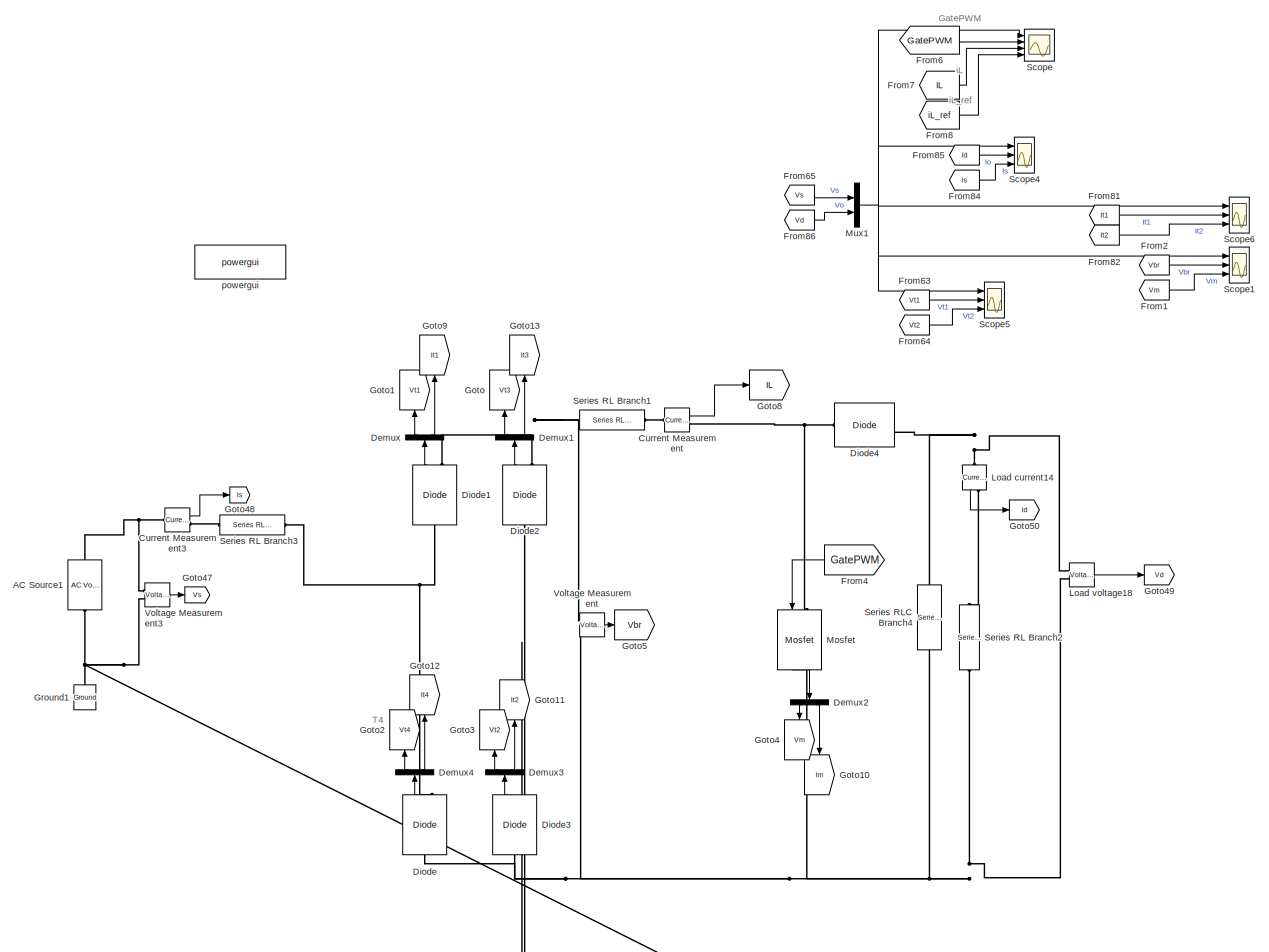
[diagram: root canvas - part 1/2, left side, full height]
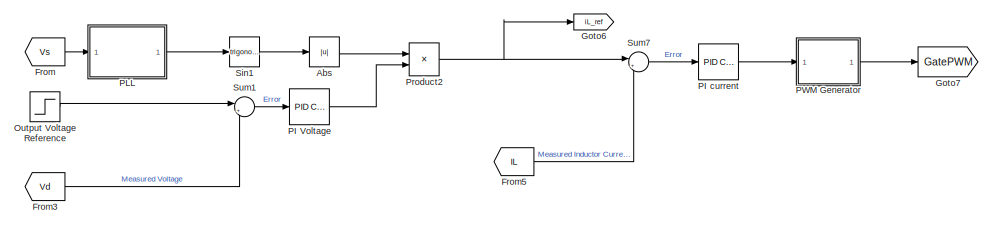
[diagram: root canvas - part 2/2, middle right region]
MODEL slx_e6503b37c94a
KIND model
CONFIG AbsTol = auto
CONFIG EnableMultiTasking = off
CONFIG FixedStep = auto
CONFIG MaxStep = auto
CONFIG MinStep = auto
CONFIG RelTol = 1e-3
CONFIG SampleTimeConstraint = Unconstrained
CONFIG SolverName = VariableStepAuto
CONFIG StartTime = 0.0
CONFIG StopTime = 10.0
BLOCK [Reference] AC Source1  REF=spsACVoltageSourceLib/AC Voltage Source
  NameLocation = left
  Ports = [0, 0, 0, 0, 0, 1, 1]
  SourceBlock = spsACVoltageSourceLib/AC Voltage Source
  SourceProductBaseCode = PS
  SourceType = AC Voltage Source
BLOCK [Abs] Abs
  SaturateOnIntegerOverflow = off
BLOCK [Reference] Current Measurement  REF=spsCurrentMeasurementLib/Current Measurement
  Ports = [0, 1, 0, 0, 0, 1, 1]
  SourceBlock = spsCurrentMeasurementLib/Current Measurement
  SourceProductBaseCode = PS
  SourceType = Current Measurement
  UserDataPersistent = on
BLOCK [Reference] Current Measurement3  REF=spsCurrentMeasurementLib/Current Measurement
  Ports = [0, 1, 0, 0, 0, 1, 1]
  SourceBlock = spsCurrentMeasurementLib/Current Measurement
  SourceProductBaseCode = PS
  SourceType = Current Measurement
  UserDataPersistent = on
BLOCK [Demux] Demux
  NameLocation = right
  Outputs = 2
  Ports = [1, 2]
BLOCK [Demux] Demux1
  NameLocation = right
  Outputs = 2
  Ports = [1, 2]
BLOCK [Demux] Demux2
  NameLocation = left
  Outputs = 2
  Ports = [1, 2]
BLOCK [Demux] Demux3
  NameLocation = right
  Outputs = 2
  Ports = [1, 2]
BLOCK [Demux] Demux4
  NameLocation = right
  Outputs = 2
  Ports = [1, 2]
BLOCK [Reference] Diode  REF=spsDiodeLib/Diode
  NameLocation = right
  Ports = [0, 1, 0, 0, 0, 1, 1]
  SourceBlock = spsDiodeLib/Diode
  SourceProductBaseCode = PS
  SourceType = Diode
BLOCK [Reference] Diode1  REF=spsDiodeLib/Diode
  NameLocation = right
  Ports = [0, 1, 0, 0, 0, 1, 1]
  SourceBlock = spsDiodeLib/Diode
  SourceProductBaseCode = PS
  SourceType = Diode
BLOCK [Reference] Diode2  REF=spsDiodeLib/Diode
  NameLocation = right
  Ports = [0, 1, 0, 0, 0, 1, 1]
  SourceBlock = spsDiodeLib/Diode
  SourceProductBaseCode = PS
  SourceType = Diode
BLOCK [Reference] Diode3  REF=spsDiodeLib/Diode
  NameLocation = right
  Ports = [0, 1, 0, 0, 0, 1, 1]
  SourceBlock = spsDiodeLib/Diode
  SourceProductBaseCode = PS
  SourceType = Diode
BLOCK [Reference] Diode4  REF=spsDiodeLib/Diode
  Ports = [0, 1, 0, 0, 0, 1, 1]
  SourceBlock = spsDiodeLib/Diode
  SourceProductBaseCode = PS
  SourceType = Diode
BLOCK [From] From
  GotoTag = Vs
  TagVisibility = global
BLOCK [From] From1
  GotoTag = Vm
BLOCK [From] From2
  GotoTag = Vbr
BLOCK [From] From3
  GotoTag = Vd
  TagVisibility = global
BLOCK [From] From4
  GotoTag = GatePWM
  NameLocation = top
BLOCK [From] From5
  GotoTag = IL
BLOCK [From] From6
  GotoTag = GatePWM
BLOCK [From] From63
  GotoTag = Vt1
BLOCK [From] From64
  GotoTag = Vt2
BLOCK [From] From65
  GotoTag = Vs
  TagVisibility = global
BLOCK [From] From7
  GotoTag = IL
BLOCK [From] From8
  GotoTag = iL_ref
  TagVisibility = global
BLOCK [From] From81
  GotoTag = It1
BLOCK [From] From82
  GotoTag = It2
BLOCK [From] From84
  GotoTag = Is
  TagVisibility = global
BLOCK [From] From85
  GotoTag = Id
  TagVisibility = global
BLOCK [From] From86
  GotoTag = Vd
  TagVisibility = global
BLOCK [Goto] Goto
  GotoTag = Vt3
  NameLocation = right
BLOCK [Goto] Goto1
  GotoTag = Vt1
  NameLocation = right
BLOCK [Goto] Goto10
  GotoTag = Im
  NameLocation = left
BLOCK [Goto] Goto11
  GotoTag = It2
  NameLocation = right
BLOCK [Goto] Goto12
  GotoTag = It4
  NameLocation = right
BLOCK [Goto] Goto13
  GotoTag = It3
  NameLocation = right
BLOCK [Goto] Goto2
  GotoTag = Vt4
  NameLocation = right
BLOCK [Goto] Goto3
  GotoTag = Vt2
  NameLocation = right
BLOCK [Goto] Goto4
  GotoTag = Vm
  NameLocation = left
BLOCK [Goto] Goto47
  GotoTag = Vs
  TagVisibility = global
BLOCK [Goto] Goto48
  GotoTag = Is
  TagVisibility = global
BLOCK [Goto] Goto49
  GotoTag = Vd
  TagVisibility = global
BLOCK [Goto] Goto5
  GotoTag = Vbr
BLOCK [Goto] Goto50
  GotoTag = Id
  TagVisibility = global
BLOCK [Goto] Goto6
  GotoTag = iL_ref
  TagVisibility = global
BLOCK [Goto] Goto7
  GotoTag = GatePWM
BLOCK [Goto] Goto8
  GotoTag = IL
BLOCK [Goto] Goto9
  GotoTag = It1
  NameLocation = right
BLOCK [Reference] Ground1  REF=spsGroundLib/Ground
  NameLocation = right
  Ports = [0, 0, 0, 0, 0, 1]
  SourceBlock = spsGroundLib/Ground
  SourceProductBaseCode = PS
  SourceType = Ground
BLOCK [Reference] Load current14  REF=spsCurrentMeasurementLib/Current Measurement
  NameLocation = left
  Ports = [0, 1, 0, 0, 0, 1, 1]
  SourceBlock = spsCurrentMeasurementLib/Current Measurement
  SourceProductBaseCode = PS
  SourceType = Current Measurement
  UserDataPersistent = on
BLOCK [Reference] Load voltage18  REF=spsVoltageMeasurementLib/Voltage Measurement
  Ports = [0, 1, 0, 0, 0, 2]
  SourceBlock = spsVoltageMeasurementLib/Voltage Measurement
  SourceProductBaseCode = PS
  SourceType = Voltage Measurement
  UserDataPersistent = on
BLOCK [Reference] Mosfet  REF=spsMosfetLib/Mosfet
  NameLocation = left
  Ports = [1, 1, 0, 0, 0, 1, 1]
  SourceBlock = spsMosfetLib/Mosfet
  SourceProductBaseCode = PS
  SourceType = Mosfet
BLOCK [Mux] Mux1
  DisplayOption = bar
  Inputs = 2
  Ports = [2, 1]
BLOCK [Step] Output Voltage Reference
  After = 526.5
  Before = 405
  SampleTime = 2e-7
  Time = 0.1
BLOCK [Reference] PI Voltage  REF=slpidlib/PID Controller
  Ports = [1, 1]
  SourceBlock = slpidlib/PID Controller
  SourceProductBaseCode = SL
  SourceType = PID 1dof
BLOCK [Reference] PI current  REF=slpidlib/PID Controller
  Ports = [1, 1]
  SourceBlock = slpidlib/PID Controller
  SourceProductBaseCode = SL
  SourceType = PID 1dof
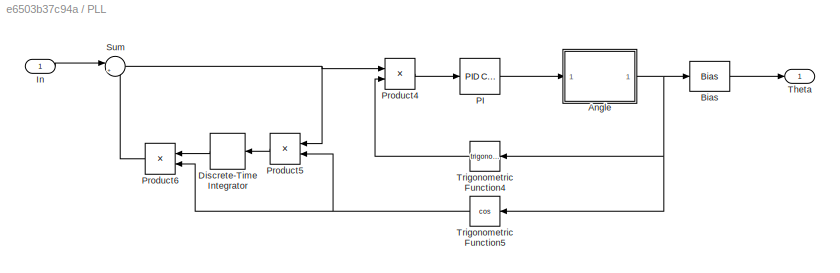
BLOCK [SubSystem] PLL
  Ports = [1, 1]
  RequestExecContextInheritance = off
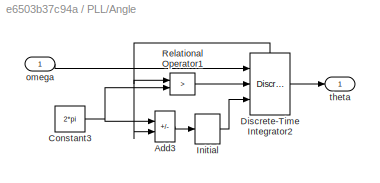
BLOCK [SubSystem] PLL/Angle
  Ports = [1, 1]
  RequestExecContextInheritance = off
BLOCK [Sum] PLL/Angle/Add3
  IconShape = rectangular
  Inputs = -+
  NameLocation = top
  Ports = [2, 1]
BLOCK [Constant] PLL/Angle/Constant3
  Value = 2*pi
BLOCK [DiscreteIntegrator] PLL/Angle/Discrete-Time Integrator2
  ExternalReset = rising
  ICPrevOutput = DiscIntNeverNeededParam
  ICPrevScaledInput = DiscIntNeverNeededParam
  InitialConditionSetting = Auto
  InitialConditionSource = external
  Ports = [3, 1, 0, 0, 1]
  SampleTime = -1
  ShowStatePort = on
BLOCK [InitialCondition] PLL/Angle/Initial
  Value = 0
BLOCK [RelationalOperator] PLL/Angle/Relational Operator1
  InputSameDT = off
  Operator = >
  OutDataTypeStr = boolean
  Ports = [2, 1]
BLOCK [Inport] PLL/Angle/omega
BLOCK [Outport] PLL/Angle/theta
  VectorParamsAs1DForOutWhenUnconnected = off
BLOCK [Bias] PLL/Bias
  Bias = -pi/2
  SaturateOnIntegerOverflow = off
BLOCK [DiscreteIntegrator] PLL/Discrete-Time Integrator
  ICPrevOutput = DiscIntNeverNeededParam
  ICPrevScaledInput = DiscIntNeverNeededParam
  InitialConditionSetting = Auto
  Ports = [1, 1]
  SampleTime = -1
  gainval = 100*2
BLOCK [Inport] PLL/In
BLOCK [Reference] PLL/PI  REF=slpidlib/PID Controller
  Ports = [1, 1]
  SourceBlock = slpidlib/PID Controller
  SourceProductBaseCode = SL
  SourceType = PID 1dof
BLOCK [Product] PLL/Product4
  Ports = [2, 1]
BLOCK [Product] PLL/Product5
  NameLocation = top
  Ports = [2, 1]
BLOCK [Product] PLL/Product6
  NameLocation = top
  Ports = [2, 1]
BLOCK [Sum] PLL/Sum
  Inputs = |+-
  Ports = [2, 1]
BLOCK [Outport] PLL/Theta
  VectorParamsAs1DForOutWhenUnconnected = off
BLOCK [Trigonometry] PLL/Trigonometric Function4
  NameLocation = top
  Ports = [1, 1]
BLOCK [Trigonometry] PLL/Trigonometric Function5
  NameLocation = top
  Operator = cos
  Ports = [1, 1]
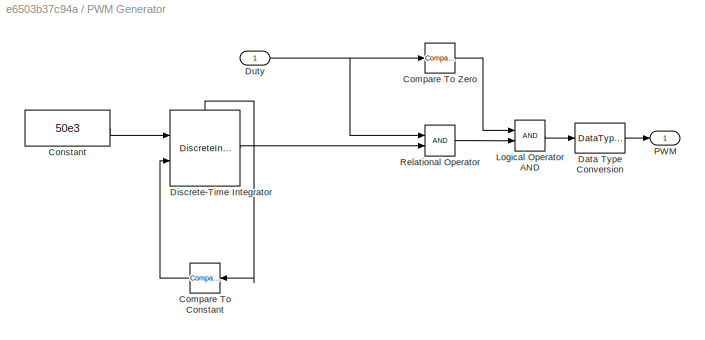
BLOCK [SubSystem] PWM Generator
  Ports = [1, 1]
  RequestExecContextInheritance = off
BLOCK [Reference] PWM Generator/Compare To Constant  REF=simulink/Logic and Bit
Operations/Compare
To Constant
  NameLocation = top
  Ports = [1, 1]
  SourceBlock = simulink/Logic and Bit\nOperations/Compare\nTo Constant
  SourceProductBaseCode = SL
  SourceType = Compare To Constant
BLOCK [Reference] PWM Generator/Compare To Zero  REF=simulink/Logic and Bit
Operations/Compare
To Zero
  Ports = [1, 1]
  SourceBlock = simulink/Logic and Bit\nOperations/Compare\nTo Zero
  SourceProductBaseCode = SL
  SourceType = Compare To Zero
BLOCK [Constant] PWM Generator/Constant
  SampleTime = 2e-7
  Value = 50e3
BLOCK [DataTypeConversion] PWM Generator/Data Type Conversion
  OutDataTypeStr = double
  RndMeth = Floor
  SaturateOnIntegerOverflow = off
BLOCK [DiscreteIntegrator] PWM Generator/Discrete-Time Integrator
  ExternalReset = rising
  ICPrevOutput = DiscIntNeverNeededParam
  ICPrevScaledInput = DiscIntNeverNeededParam
  InitialConditionSetting = Auto
  Ports = [2, 1, 0, 0, 1]
  SampleTime = -1
  ShowStatePort = on
BLOCK [Inport] PWM Generator/Duty
BLOCK [Logic] PWM Generator/Logical Operator AND
  AllPortsSameDT = off
  OutDataTypeStr = boolean
  Ports = [2, 1]
BLOCK [Outport] PWM Generator/PWM
  NameLocation = top
  VectorParamsAs1DForOutWhenUnconnected = off
BLOCK [RelationalOperator] PWM Generator/Relational Operator
  InputSameDT = off
  OutDataTypeStr = boolean
  Ports = [2, 1]
BLOCK [Product] Product2
  Ports = [2, 1]
BLOCK [Scope] Scope
  Floating = off
  NumInputPorts = 4
  Ports = [4]
  ScopeSpecificationString = Simulink.scopes.TimeScopeBlockCfg('CurrentConfiguration', extmgr.ConfigurationSet(extmgr.Configuration('Core','General UI',true),extmgr.Configuration('Core','Source UI',true),extmgr.Configuration('Sources','WiredSimulink',true,'DataLoggingVariableName','ScopeData2'),extmgr.Configuration('Visuals','Time Domain',true,'SerializedDisplays',{struct('MinYLimReal','-608.90249','MaxYLimReal','967.58976','...<+3420ch>
BLOCK [Scope] Scope1
  Floating = off
  NumInputPorts = 3
  Ports = [3]
  ScopeSpecificationString = Simulink.scopes.TimeScopeBlockCfg('CurrentConfiguration', extmgr.ConfigurationSet(extmgr.Configuration('Core','General UI',true,'FigureColor',[0 0 0]),extmgr.Configuration('Core','Source UI',true),extmgr.Configuration('Sources','WiredSimulink',true,'DataLoggingSaveFormat','StructureWithTime','DataLoggingDecimation','1','DataLoggingVariableName','ScopeData1'),extmgr.Configuration('Visuals','Time Do...<+3241ch>
BLOCK [Scope] Scope4
  Floating = off
  NumInputPorts = 3
  Ports = [3]
  ScopeSpecificationString = Simulink.scopes.TimeScopeBlockCfg('CurrentConfiguration', extmgr.ConfigurationSet(extmgr.Configuration('Core','General UI',true,'FigureColor',[0 0 0]),extmgr.Configuration('Core','Source UI',true),extmgr.Configuration('Sources','WiredSimulink',true,'DataLoggingSaveFormat','StructureWithTime','DataLoggingDecimation','1','DataLoggingVariableName','ScopeData1','DataLogging',true),extmgr.Configuration...<+3276ch>
BLOCK [Scope] Scope5
  Floating = off
  NumInputPorts = 3
  Ports = [3]
  ScopeSpecificationString = Simulink.scopes.TimeScopeBlockCfg('CurrentConfiguration', extmgr.ConfigurationSet(extmgr.Configuration('Core','General UI',true,'FigureColor',[0 0 0]),extmgr.Configuration('Core','Source UI',true),extmgr.Configuration('Sources','WiredSimulink',true,'DataLoggingSaveFormat','StructureWithTime','DataLoggingDecimation','1','DataLoggingVariableName','ScopeData2'),extmgr.Configuration('Visuals','Time Do...<+3248ch>
BLOCK [Scope] Scope6
  Floating = off
  NumInputPorts = 3
  Ports = [3]
  ScopeSpecificationString = Simulink.scopes.TimeScopeBlockCfg('CurrentConfiguration', extmgr.ConfigurationSet(extmgr.Configuration('Core','General UI',true,'FigureColor',[0 0 0]),extmgr.Configuration('Core','Source UI',true),extmgr.Configuration('Sources','WiredSimulink',true,'DataLoggingSaveFormat','StructureWithTime','DataLoggingDecimation','1'),extmgr.Configuration('Visuals','Time Domain',true,'PlotType','Line','Serialize...<+3197ch>
BLOCK [Reference] Series RL Branch1  REF=spsSeriesRLCBranchLib/Series RLC Branch
  Ports = [0, 0, 0, 0, 0, 1, 1]
  SourceBlock = spsSeriesRLCBranchLib/Series RLC Branch
  SourceProductBaseCode = PS
  SourceType = Series RLC Branch
BLOCK [Reference] Series RL Branch2  REF=spsSeriesRLCBranchLib/Series RLC Branch
  NameLocation = left
  Ports = [0, 0, 0, 0, 0, 1, 1]
  SourceBlock = spsSeriesRLCBranchLib/Series RLC Branch
  SourceProductBaseCode = PS
  SourceType = Series RLC Branch
BLOCK [Reference] Series RL Branch3  REF=spsSeriesRLCBranchLib/Series RLC Branch
  Ports = [0, 0, 0, 0, 0, 1, 1]
  SourceBlock = spsSeriesRLCBranchLib/Series RLC Branch
  SourceProductBaseCode = PS
  SourceType = Series RLC Branch
BLOCK [Reference] Series RLC Branch4  REF=spsSeriesRLCBranchLib/Series RLC Branch
  NameLocation = left
  Ports = [0, 0, 0, 0, 0, 1, 1]
  SourceBlock = spsSeriesRLCBranchLib/Series RLC Branch
  SourceProductBaseCode = PS
  SourceType = Series RLC Branch
BLOCK [Trigonometry] Sin1
  Ports = [1, 1]
BLOCK [Sum] Sum1
  Inputs = |+-
  Ports = [2, 1]
BLOCK [Sum] Sum7
  Inputs = |+-
  Ports = [2, 1]
BLOCK [Reference] Voltage Measurement  REF=spsVoltageMeasurementLib/Voltage Measurement
  Ports = [0, 1, 0, 0, 0, 2]
  SourceBlock = spsVoltageMeasurementLib/Voltage Measurement
  SourceProductBaseCode = PS
  SourceType = Voltage Measurement
  UserDataPersistent = on
BLOCK [Reference] Voltage Measurement3  REF=spsVoltageMeasurementLib/Voltage Measurement
  Ports = [0, 1, 0, 0, 0, 2]
  SourceBlock = spsVoltageMeasurementLib/Voltage Measurement
  SourceProductBaseCode = PS
  SourceType = Voltage Measurement
  UserDataPersistent = on
BLOCK [Reference] powergui  REF=spspowerguiLib/powergui
  Ports = []
  Priority = 1
  SourceBlock = spspowerguiLib/powergui
  SourceProductBaseCode = PS
  SourceType = PSB option menu block
ANNOTATION (root): T4
ANNOTATION (root): GatePWM
ANNOTATION (root): iL
ANNOTATION (root): iL_ref
LINE Abs:1 -> Product2:1
LINE Current Measurement3:1 -> Goto48:1
LINE Current Measurement:1 -> Goto8:1
LINE Demux1:1 -> Goto:1
LINE Demux1:2 -> Goto13:1
LINE Demux2:1 -> Goto4:1
LINE Demux2:2 -> Goto10:1
LINE Demux3:1 -> Goto3:1
LINE Demux3:2 -> Goto11:1
LINE Demux4:1 -> Goto2:1
LINE Demux4:2 -> Goto12:1
LINE Demux:1 -> Goto1:1
LINE Demux:2 -> Goto9:1
LINE Diode1:1 -> Demux:1
LINE Diode2:1 -> Demux1:1
LINE Diode3:1 -> Demux3:1
LINE Diode:1 -> Demux4:1
LINE From1:1 -> Scope1:3
LINE From2:1 -> Scope1:2
LINE From3:1 -> Sum1:2
LINE From4:1 -> Mosfet:1
LINE From5:1 -> Sum7:2
LINE From63:1 -> Scope5:2
LINE From64:1 -> Scope5:3
LINE From65:1 -> Mux1:1
LINE From6:1 -> Scope:2
LINE From7:1 -> Scope:3
LINE From81:1 -> Scope6:2
LINE From82:1 -> Scope6:3
LINE From84:1 -> Scope4:3
LINE From85:1 -> Scope4:2
LINE From86:1 -> Mux1:2
LINE From8:1 -> Scope:4
LINE From:1 -> PLL:1
LINE Load current14:1 -> Goto50:1
LINE Load voltage18:1 -> Goto49:1
LINE Mosfet:1 -> Demux2:1
NET Mux1:1 -> Scope1:1, Scope4:1, Scope5:1, Scope6:1, Scope:1
LINE Output Voltage Reference:1 -> Sum1:1
LINE PI Voltage:1 -> Product2:2
LINE PI current:1 -> PWM Generator:1
LINE PLL/Angle/Add3:1 -> PLL/Angle/Initial:1
NET PLL/Angle/Constant3:1 -> PLL/Angle/Add3:1, PLL/Angle/Relational Operator1:2
LINE PLL/Angle/Discrete-Time Integrator2:1 -> PLL/Angle/theta:1
NET PLL/Angle/Discrete-Time Integrator2:state -> PLL/Angle/Add3:2, PLL/Angle/Relational Operator1:1
LINE PLL/Angle/Initial:1 -> PLL/Angle/Discrete-Time Integrator2:3
LINE PLL/Angle/Relational Operator1:1 -> PLL/Angle/Discrete-Time Integrator2:2
LINE PLL/Angle/omega:1 -> PLL/Angle/Discrete-Time Integrator2:1
NET PLL/Angle:1 -> PLL/Bias:1, PLL/Trigonometric Function4:1, PLL/Trigonometric Function5:1
LINE PLL/Bias:1 -> PLL/Theta:1
LINE PLL/Discrete-Time Integrator:1 -> PLL/Product6:1
LINE PLL/In:1 -> PLL/Sum:1
LINE PLL/PI:1 -> PLL/Angle:1
LINE PLL/Product4:1 -> PLL/PI:1
LINE PLL/Product5:1 -> PLL/Discrete-Time Integrator:1
LINE PLL/Product6:1 -> PLL/Sum:2
NET PLL/Sum:1 -> PLL/Product4:1, PLL/Product5:1
LINE PLL/Trigonometric Function4:1 -> PLL/Product4:2
NET PLL/Trigonometric Function5:1 -> PLL/Product5:2, PLL/Product6:2
LINE PLL:1 -> Sin1:1
LINE PWM Generator/Compare To Constant:1 -> PWM Generator/Discrete-Time Integrator:2
LINE PWM Generator/Compare To Zero:1 -> PWM Generator/Logical Operator AND:1
LINE PWM Generator/Constant:1 -> PWM Generator/Discrete-Time Integrator:1
LINE PWM Generator/Data Type Conversion:1 -> PWM Generator/PWM:1
LINE PWM Generator/Discrete-Time Integrator:1 -> PWM Generator/Relational Operator:2
LINE PWM Generator/Discrete-Time Integrator:state -> PWM Generator/Compare To Constant:1
NET PWM Generator/Duty:1 -> PWM Generator/Compare To Zero:1, PWM Generator/Relational Operator:1
LINE PWM Generator/Logical Operator AND:1 -> PWM Generator/Data Type Conversion:1
LINE PWM Generator/Relational Operator:1 -> PWM Generator/Logical Operator AND:2
LINE PWM Generator:1 -> Goto7:1
NET Product2:1 -> Goto6:1, Sum7:1
LINE Sin1:1 -> Abs:1
LINE Sum1:1 -> PI Voltage:1
LINE Sum7:1 -> PI current:1
LINE Voltage Measurement3:1 -> Goto47:1
LINE Voltage Measurement:1 -> Goto5:1
PNET net1: AC Source1:LConn1 -- Diode2:LConn1 -- Diode3:RConn1 -- Ground1:LConn1 -- Voltage Measurement3:LConn2
PNET net2: AC Source1:RConn1 -- Current Measurement3:LConn1 -- Voltage Measurement3:LConn1
PLINE Current Measurement3:RConn1 -- Series RL Branch3:LConn1
PLINE Current Measurement:LConn1 -- Series RL Branch1:RConn1
PNET net3: Current Measurement:RConn1 -- Diode4:LConn1 -- Mosfet:LConn1
PNET net4: Diode1:LConn1 -- Diode:RConn1 -- Series RL Branch3:RConn1
PNET net5: Diode1:RConn1 -- Diode2:RConn1 -- Series RL Branch1:LConn1 -- Voltage Measurement:LConn1
PNET net6: Diode3:LConn1 -- Diode:LConn1 -- Load voltage18:LConn2 -- Mosfet:RConn1 -- Series RL Branch2:RConn1 -- Series RLC Branch4:RConn1 -- Voltage Measurement:LConn2
PNET net7: Diode4:RConn1 -- Load current14:LConn1 -- Load voltage18:LConn1 -- Series RLC Branch4:LConn1
PLINE Load current14:RConn1 -- Series RL Branch2:LConn1
note: NET lines group one-source signal fan-out (src -> all destinations, sorted); 1:1 wires keep LINE; PNET lines group multi-terminal physical nets as a canonical sorted terminal list (undirected conserving connections); 2-terminal nets keep the pairwise PLINE form
